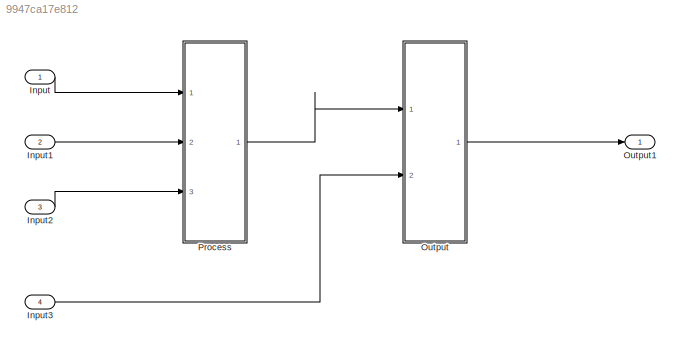
MODEL slx_9947ca17e812
KIND model
CONFIG AbsTol = auto
CONFIG EnableMultiTasking = off
CONFIG FixedStep = auto
CONFIG MaxStep = auto
CONFIG MinStep = auto
CONFIG RelTol = 1e-3
CONFIG SampleTimeConstraint = Unconstrained
CONFIG SolverName = FixedStepAuto
CONFIG StartTime = 0.0
CONFIG StopTime = 10.0
BLOCK [Inport] Input
BLOCK [Inport] Input1
  Port = 2
BLOCK [Inport] Input2
  Port = 3
BLOCK [Inport] Input3
  Port = 4
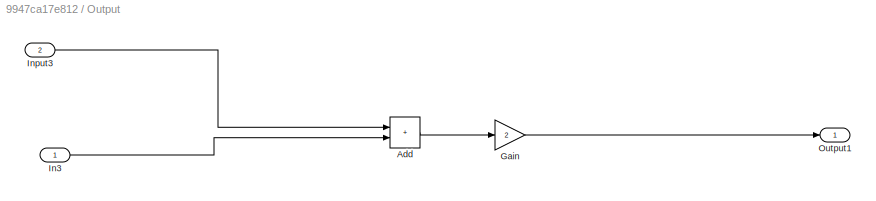
BLOCK [SubSystem] Output
  Ports = [2, 1]
  RequestExecContextInheritance = off
BLOCK [Sum] Output/Add
  IconShape = rectangular
  Ports = [2, 1]
BLOCK [Gain] Output/Gain
  Gain = 2
BLOCK [Inport] Output/In3
BLOCK [Inport] Output/Input3
  Port = 2
BLOCK [Outport] Output/Output1
BLOCK [Outport] Output1
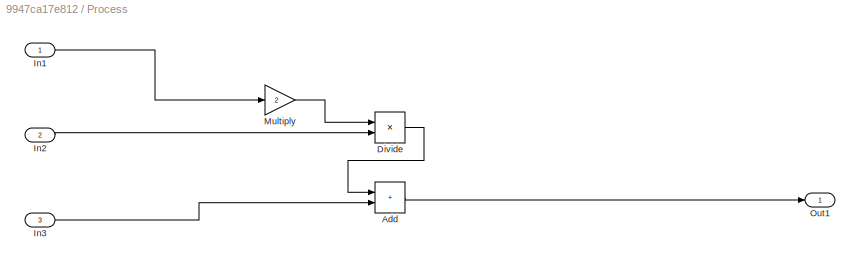
BLOCK [SubSystem] Process
  Ports = [3, 1]
  RequestExecContextInheritance = off
BLOCK [Sum] Process/Add
  IconShape = rectangular
  Ports = [2, 1]
BLOCK [Product] Process/Divide
  Inputs = **
  Ports = [2, 1]
BLOCK [Inport] Process/In1
BLOCK [Inport] Process/In2
  Port = 2
BLOCK [Inport] Process/In3
  Port = 3
BLOCK [Gain] Process/Multiply
  Gain = 2
BLOCK [Outport] Process/Out1
LINE Input1:1 -> Process:2
LINE Input2:1 -> Process:3
LINE Input3:1 -> Output:2
LINE Input:1 -> Process:1
LINE Output/Add:1 -> Output/Gain:1
LINE Output/Gain:1 -> Output/Output1:1
LINE Output/In3:1 -> Output/Add:2
LINE Output/Input3:1 -> Output/Add:1
LINE Output:1 -> Output1:1
LINE Process/Add:1 -> Process/Out1:1
LINE Process/Divide:1 -> Process/Add:1
LINE Process/In1:1 -> Process/Multiply:1
LINE Process/In2:1 -> Process/Divide:2
LINE Process/In3:1 -> Process/Add:2
LINE Process/Multiply:1 -> Process/Divide:1
LINE Process:1 -> Output:1
